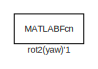
[diagram: root canvas - part 1/4, top center region]
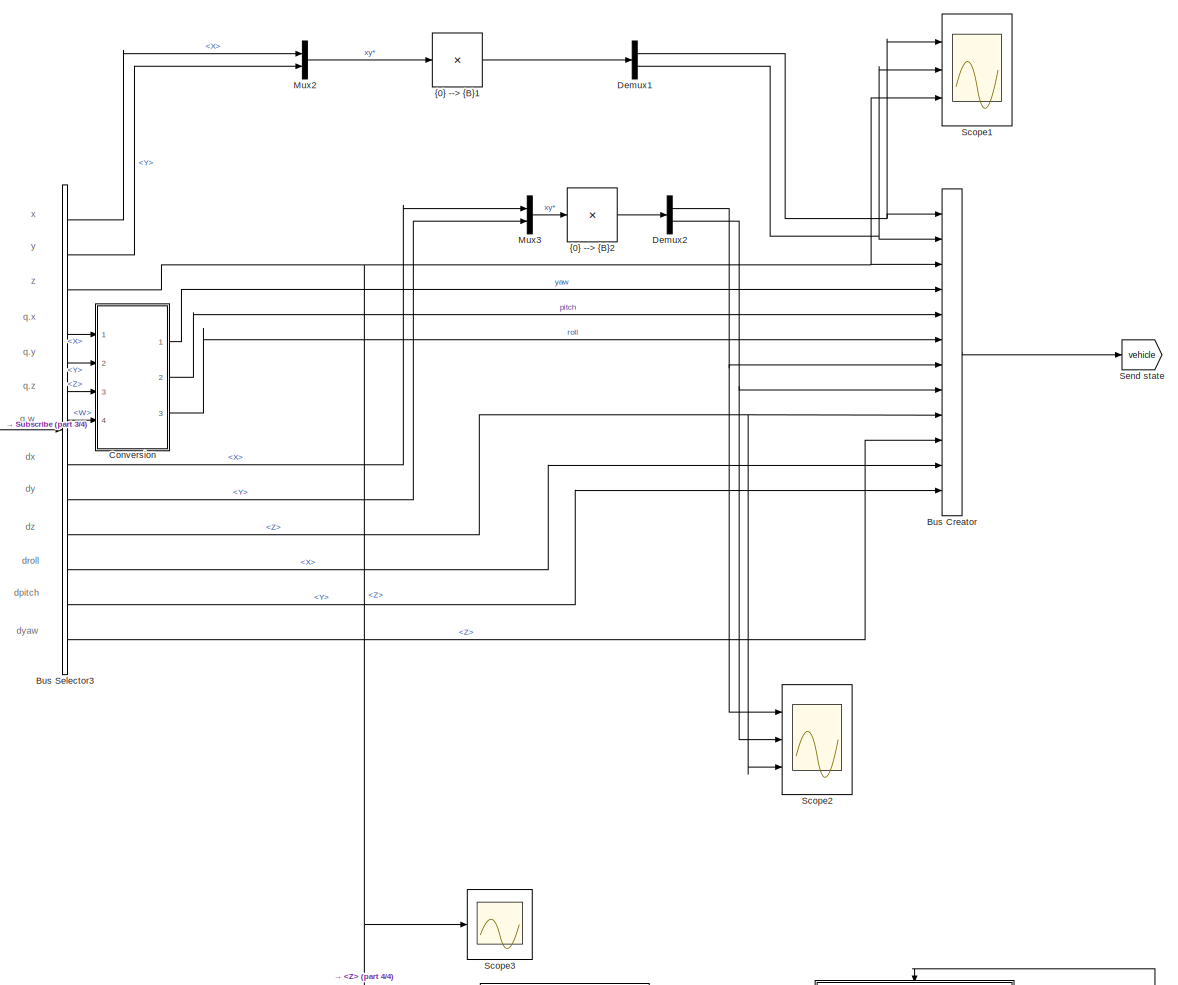
[diagram: root canvas - part 2/4, full width, middle band]
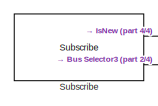
[diagram: root canvas - part 3/4, top left region]
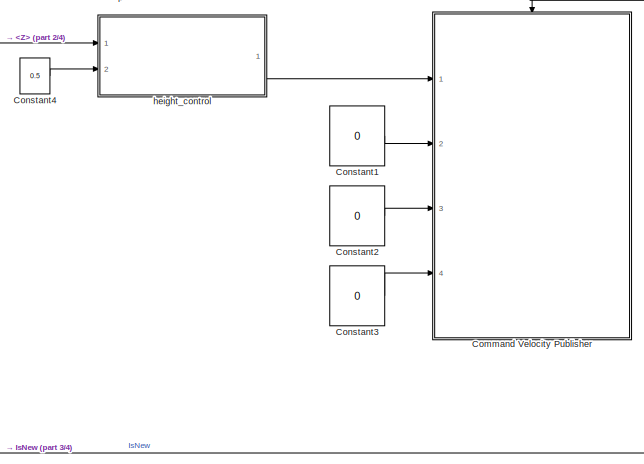
[diagram: root canvas - part 4/4, bottom right region]
MODEL slx_9c975be437bc
KIND model
CONFIG AbsTol = auto
CONFIG EnableMultiTasking = on
CONFIG FixedStep = auto
CONFIG MaxStep = 0.1
CONFIG MinStep = auto
CONFIG PreLoadFcn = % load parameters of the default quadrotor\ndisp('Quadrotor parameters loaded by PreLoadFcn')\nmdl_quadrotor
CONFIG RelTol = 1e-3
CONFIG SampleTimeConstraint = Unconstrained
CONFIG Solver = FixedStepAuto
CONFIG SolverName = FixedStepAuto
CONFIG StartTime = 0.0
CONFIG StopTime = inf
BLOCK [BusCreator] Bus Creator
  DisplayOption = bar
  InheritFromInputs = on
  Inputs = 12
  Ports = [12, 1]
BLOCK [BusSelector] Bus Selector3
  OutputSignals = Pose.Pose.Position.X,Pose.Pose.Position.Y,Pose.Pose.Position.Z,Pose.Pose.Orientation.X,Pose.Pose.Orientation.Y,Pose.Pose.Orientation.Z,Pose.Pose.Orientation.W,Twist.Twist.Linear.X,Twist.Twist.Linear.Y,Twist.Twist.Linear.Z,Twist.Twist.Angular.X,Twist.Twist.Angular.Y,Twist.Twist.Angular.Z
  Ports = [1, 13]
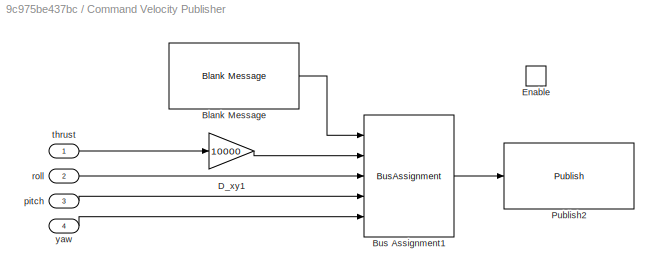
BLOCK [SubSystem] Command Velocity Publisher
  Ports = [4, 0, 1]
  RequestExecContextInheritance = off
BLOCK [Reference] Command Velocity Publisher/Blank Message  REF=robotlib/Blank Message
  Ports = [0, 1]
  SourceBlock = robotlib/Blank Message
  SourceProductBaseCode = RR
  SourceType = ROS Blank Message
BLOCK [BusAssignment] Command Velocity Publisher/Bus Assignment1
  AssignedSignals = Thrust,Roll,Pitch,YawRate
  DialogController = Simulink.DDGSource_BusAssignment
  Ports = [5, 1]
BLOCK [Gain] Command Velocity Publisher/D_xy1
  Gain = 10000
BLOCK [EnablePort] Command Velocity Publisher/Enable
  Ports = []
BLOCK [Reference] Command Velocity Publisher/Publish2  REF=robotlib/Publish
  AttributesFormatString = %<messageType>
  Ports = [1]
  SourceBlock = robotlib/Publish
  SourceProductBaseCode = RR
  SourceType = ROS Publish
BLOCK [Inport] Command Velocity Publisher/pitch
  Port = 3
BLOCK [Inport] Command Velocity Publisher/roll
  Port = 2
BLOCK [Inport] Command Velocity Publisher/thrust
BLOCK [Inport] Command Velocity Publisher/yaw
  Port = 4
BLOCK [Constant] Constant1
  Value = 0
BLOCK [Constant] Constant2
  Value = 0
BLOCK [Constant] Constant3
  Value = 0
BLOCK [Constant] Constant4
  Value = 0.5
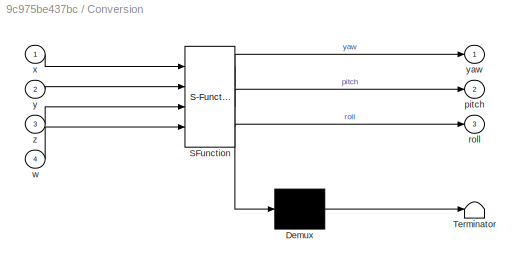
BLOCK [SubSystem] Conversion
  ErrorFcn = Stateflow.Translate.translate
  PermitHierarchicalResolution = ExplicitOnly
  Ports = [4, 3]
  RequestExecContextInheritance = off
  SFBlockType = MATLAB Function
  TreatAsAtomicUnit = on
BLOCK [Demux] Conversion/ Demux 
  Outputs = 1
  Ports = [1, 1]
BLOCK [S-Function] Conversion/ SFunction 
  EnableBusSupport = on
  FunctionName = sf_sfun
  PortCounts = [4 4]
  Ports = [4, 4]
  SFcnIsStateOwnerBlock = off
  SFunctionDeploymentMode = off
  Tag = Stateflow S-Function 1
BLOCK [Terminator] Conversion/ Terminator 
BLOCK [Outport] Conversion/pitch
  Port = 2
  VectorParamsAs1DForOutWhenUnconnected = off
BLOCK [Outport] Conversion/roll
  Port = 3
  VectorParamsAs1DForOutWhenUnconnected = off
BLOCK [Inport] Conversion/w
  Port = 4
BLOCK [Inport] Conversion/x
BLOCK [Inport] Conversion/y
  Port = 2
BLOCK [Outport] Conversion/yaw
  VectorParamsAs1DForOutWhenUnconnected = off
BLOCK [Inport] Conversion/z
  Port = 3
BLOCK [Demux] Demux1
  Outputs = 2
  Ports = [1, 2]
BLOCK [Demux] Demux2
  Outputs = 2
  Ports = [1, 2]
BLOCK [Mux] Mux2
  DisplayOption = bar
  Inputs = 2
  Ports = [2, 1]
BLOCK [Mux] Mux3
  DisplayOption = bar
  Inputs = 2
  Ports = [2, 1]
BLOCK [Scope] Scope1
  Floating = off
  NumInputPorts = 3
  Ports = [3]
  ScopeSpecificationString = Simulink.scopes.TimeScopeBlockCfg('CurrentConfiguration', extmgr.ConfigurationSet(extmgr.Configuration('Core','General UI',true),extmgr.Configuration('Core','Source UI',true),extmgr.Configuration('Sources','WiredSimulink',true,'DataLoggingVariableName','ScopeData1'),extmgr.Configuration('Visuals','Time Domain',true,'SerializedDisplays',{struct('MinYLimReal','-0.25818','MaxYLimReal','-0.18701','YLa...<+2674ch>
BLOCK [Scope] Scope2
  Floating = off
  NumInputPorts = 3
  Ports = [3]
  ScopeSpecificationString = Simulink.scopes.TimeScopeBlockCfg('CurrentConfiguration', extmgr.ConfigurationSet(extmgr.Configuration('Core','General UI',true),extmgr.Configuration('Core','Source UI',true),extmgr.Configuration('Sources','WiredSimulink',true,'DataLoggingVariableName','ScopeData2'),extmgr.Configuration('Visuals','Time Domain',true,'SerializedDisplays',{struct('MinYLimReal','-0.00103','MaxYLimReal','0.00044','YLab...<+2673ch>
BLOCK [Scope] Scope3
  Floating = off
  NumInputPorts = 1
  Ports = [1]
  ScopeSpecificationString = Simulink.scopes.TimeScopeBlockCfg('CurrentConfiguration', extmgr.ConfigurationSet(extmgr.Configuration('Core','General UI',true),extmgr.Configuration('Core','Source UI',true),extmgr.Configuration('Sources','WiredSimulink',true,'DataLoggingVariableName','ScopeData1'),extmgr.Configuration('Visuals','Time Domain',true,'SerializedDisplays',{struct('MinYLimReal','-0.06741','MaxYLimReal','0.75665','YLab...<+1466ch>
BLOCK [Goto] Send state
  GotoTag = vehicle
  IconDisplay = Tag and signal name
  TagVisibility = global
BLOCK [Reference] Subscribe  REF=robotlib/Subscribe
  Ports = [0, 2]
  SourceBlock = robotlib/Subscribe
  SourceProductBaseCode = RR
  SourceType = ROS Subscribe
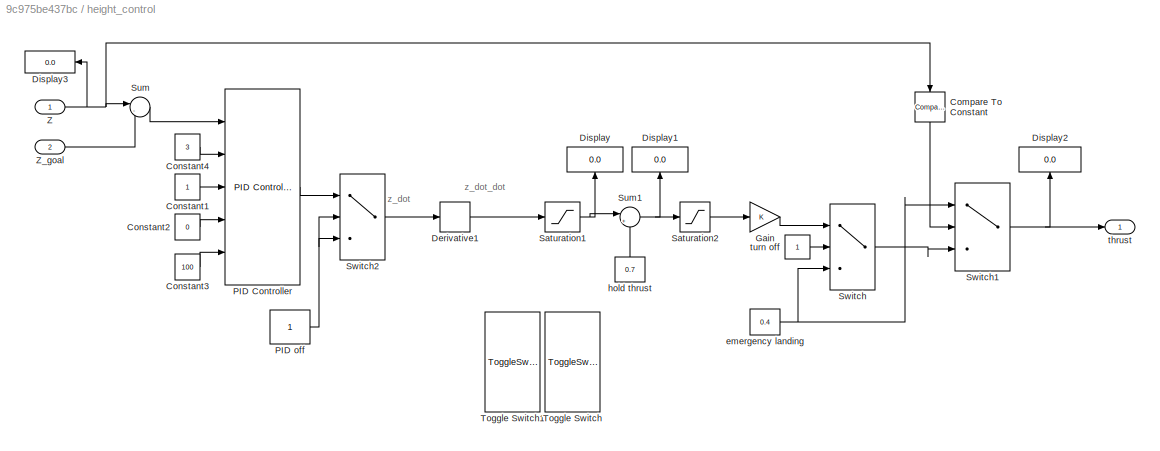
BLOCK [SubSystem] height_control
  Ports = [2, 1]
  RequestExecContextInheritance = off
BLOCK [Reference] height_control/Compare To Constant  REF=simulink/Logic and Bit
Operations/Compare
To Constant
  NameLocation = left
  Ports = [1, 1]
  SourceBlock = simulink/Logic and Bit\nOperations/Compare\nTo Constant
  SourceProductBaseCode = SL
  SourceType = Compare To Constant
BLOCK [Constant] height_control/Constant1
BLOCK [Constant] height_control/Constant2
  Value = 0
BLOCK [Constant] height_control/Constant3
  Value = 100
BLOCK [Constant] height_control/Constant4
  Value = 3
BLOCK [Derivative] height_control/Derivative1
BLOCK [Display] height_control/Display
  Decimation = 1
  NameLocation = right
  Ports = [1]
BLOCK [Display] height_control/Display1
  Decimation = 1
  NameLocation = right
  Ports = [1]
BLOCK [Display] height_control/Display2
  Decimation = 1
  NameLocation = right
  Ports = [1]
BLOCK [Display] height_control/Display3
  Decimation = 1
  NameLocation = top
  Ports = [1]
BLOCK [Gain] height_control/Gain
BLOCK [Reference] height_control/PID Controller  REF=simulink/Continuous/PID Controller
  Ports = [5, 1]
  SourceBlock = simulink/Continuous/PID Controller
  SourceProductBaseCode = SL
  SourceType = PID 1dof
BLOCK [Constant] height_control/PID off
BLOCK [Saturate] height_control/Saturation1
  LowerLimit = -0.1
  UpperLimit = 0.1
BLOCK [Saturate] height_control/Saturation2
  LowerLimit = 0
  UpperLimit = 1
BLOCK [Sum] height_control/Sum
  Inputs = |-+
  Ports = [2, 1]
BLOCK [Sum] height_control/Sum1
  Inputs = |++
  Ports = [2, 1]
BLOCK [Switch] height_control/Switch
  Criteria = u2 > Threshold
  InputSameDT = off
  SaturateOnIntegerOverflow = off
BLOCK [Switch] height_control/Switch1
  Criteria = u2 > Threshold
  InputSameDT = off
  SaturateOnIntegerOverflow = off
BLOCK [Switch] height_control/Switch2
  Criteria = u2 > Threshold
  InputSameDT = off
  SaturateOnIntegerOverflow = off
BLOCK [ToggleSwitchBlock] height_control/Toggle Switch
BLOCK [ToggleSwitchBlock] height_control/Toggle Switch1
BLOCK [Inport] height_control/Z
BLOCK [Inport] height_control/Z_goal
  Port = 2
BLOCK [Constant] height_control/emergency landing
  Value = 0.4
BLOCK [Constant] height_control/hold thrust
  Value = 0.7
BLOCK [Outport] height_control/thrust
BLOCK [Constant] height_control/turn off
BLOCK [MATLABFcn] rot2(yaw)'1
  MATLABFcn = rot2(u)'
  Output1D = off
  OutputDimensions = [2 2]
  Ports = [1, 1]
BLOCK [Product] {0} --> {B}1
  Inputs = 1
  Multiplication = Matrix(*)
  Ports = [1, 1]
  RndMeth = Zero
BLOCK [Product] {0} --> {B}2
  Inputs = 1
  Multiplication = Matrix(*)
  Ports = [1, 1]
  RndMeth = Zero
ANNOTATION (root): dpitch
ANNOTATION (root): droll
ANNOTATION (root): dx
ANNOTATION (root): dy
ANNOTATION (root): dyaw
ANNOTATION (root): dz
ANNOTATION (root): q.w
ANNOTATION (root): q.x
ANNOTATION (root): q.y
ANNOTATION (root): q.z
ANNOTATION (root): x
ANNOTATION (root): y
ANNOTATION (root): z
ANNOTATION height_control: z_dot
ANNOTATION height_control: z_dot_dot
LINE Bus Creator:1 -> Send state:1
LINE Bus Selector3:1 -> Mux2:1
NET Bus Selector3:10 -> Bus Creator:9, Scope2:3
LINE Bus Selector3:11 -> Bus Creator:11
LINE Bus Selector3:12 -> Bus Creator:12
LINE Bus Selector3:13 -> Bus Creator:10
LINE Bus Selector3:2 -> Mux2:2
NET Bus Selector3:3 -> Bus Creator:3, Scope1:3, Scope3:1, height_control:1
LINE Bus Selector3:4 -> Conversion:1
LINE Bus Selector3:5 -> Conversion:2
LINE Bus Selector3:6 -> Conversion:3
LINE Bus Selector3:7 -> Conversion:4
LINE Bus Selector3:8 -> Mux3:1
LINE Bus Selector3:9 -> Mux3:2
LINE Command Velocity Publisher/Blank Message:1 -> Command Velocity Publisher/Bus Assignment1:1
LINE Command Velocity Publisher/Bus Assignment1:1 -> Command Velocity Publisher/Publish2:1
LINE Command Velocity Publisher/D_xy1:1 -> Command Velocity Publisher/Bus Assignment1:2
LINE Command Velocity Publisher/pitch:1 -> Command Velocity Publisher/Bus Assignment1:4
LINE Command Velocity Publisher/roll:1 -> Command Velocity Publisher/Bus Assignment1:3
LINE Command Velocity Publisher/thrust:1 -> Command Velocity Publisher/D_xy1:1
LINE Command Velocity Publisher/yaw:1 -> Command Velocity Publisher/Bus Assignment1:5
LINE Constant1:1 -> Command Velocity Publisher:2
LINE Constant2:1 -> Command Velocity Publisher:3
LINE Constant3:1 -> Command Velocity Publisher:4
LINE Constant4:1 -> height_control:2
LINE Conversion:1 -> Bus Creator:4
LINE Conversion:2 -> Bus Creator:5
LINE Conversion:3 -> Bus Creator:6
NET Demux1:1 -> Bus Creator:1, Scope1:1
NET Demux1:2 -> Bus Creator:2, Scope1:2
NET Demux2:1 -> Bus Creator:7, Scope2:1
NET Demux2:2 -> Bus Creator:8, Scope2:2
LINE Mux2:1 -> {0} --> {B}1:1
LINE Mux3:1 -> {0} --> {B}2:1
LINE Subscribe:1 -> Command Velocity Publisher:enable
LINE Subscribe:2 -> Bus Selector3:1
LINE height_control/Compare To Constant:1 -> height_control/Switch1:2
LINE height_control/Constant1:1 -> height_control/PID Controller:3
LINE height_control/Constant2:1 -> height_control/PID Controller:4
LINE height_control/Constant3:1 -> height_control/PID Controller:5
LINE height_control/Constant4:1 -> height_control/PID Controller:2
LINE height_control/Derivative1:1 -> height_control/Saturation1:1
LINE height_control/Gain:1 -> height_control/Switch:1
LINE height_control/PID Controller:1 -> height_control/Switch2:1
NET height_control/PID off:1 -> height_control/Switch2:2, height_control/Switch2:3
NET height_control/Saturation1:1 -> height_control/Display:1, height_control/Sum1:1
LINE height_control/Saturation2:1 -> height_control/Gain:1
NET height_control/Sum1:1 -> height_control/Display1:1, height_control/Saturation2:1
LINE height_control/Sum:1 -> height_control/PID Controller:1
NET height_control/Switch1:1 -> height_control/Display2:1, height_control/thrust:1
LINE height_control/Switch2:1 -> height_control/Derivative1:1
LINE height_control/Switch:1 -> height_control/Switch1:3
NET height_control/Z:1 -> height_control/Compare To Constant:1, height_control/Display3:1, height_control/Sum:1
LINE height_control/Z_goal:1 -> height_control/Sum:2
NET height_control/emergency landing:1 -> height_control/Switch1:1, height_control/Switch:3
LINE height_control/hold thrust:1 -> height_control/Sum1:2
LINE height_control/turn off:1 -> height_control/Switch:2
LINE height_control:1 -> Command Velocity Publisher:1
LINE {0} --> {B}1:1 -> Demux1:1
LINE {0} --> {B}2:1 -> Demux2:1
note: NET lines group one-source signal fan-out (src -> all destinations, sorted); 1:1 wires keep LINE
CHART Conversion states=1 transitions=1
  STATE_LABEL 'eML_blk_kernel()'
  STATE_LABEL 'SCRIPT:\nfunction [yaw,pitch,roll]  = quat2eul(x,y,z,w)\n%#codegen\n\n% Convert the quaternion to a yaw angle (zyx euler angle)\neul = quat2eul([w,x,y,z]);\nyaw = eul(1);\nroll = eul(3);\npitch = eul(2);\n\nend\n'
CHART  states=0 transitions=0
